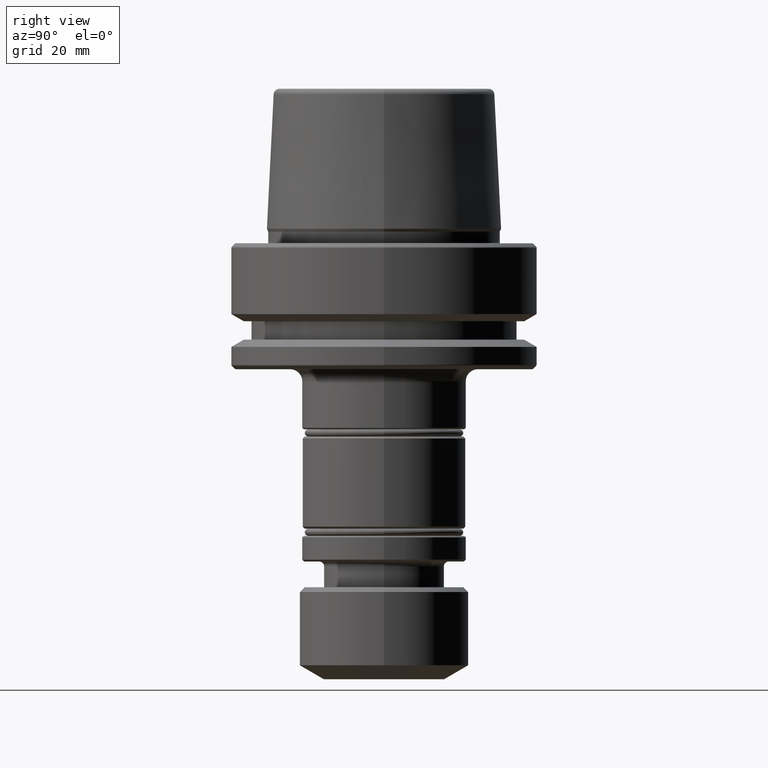
[diagram: clean part render]
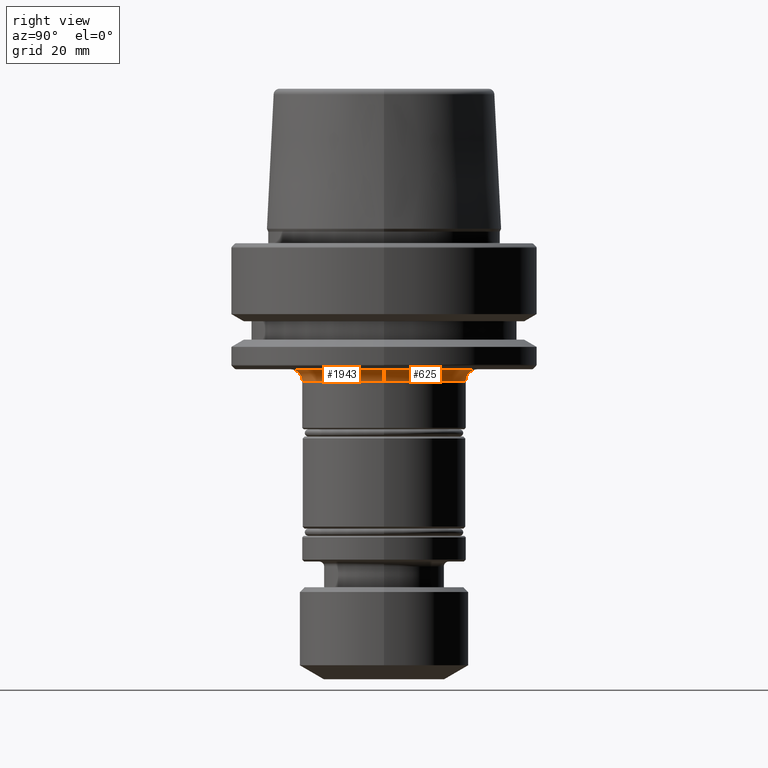
[diagram: same view with one multi-face feature highlighted, each face labeled with its STEP entity id]
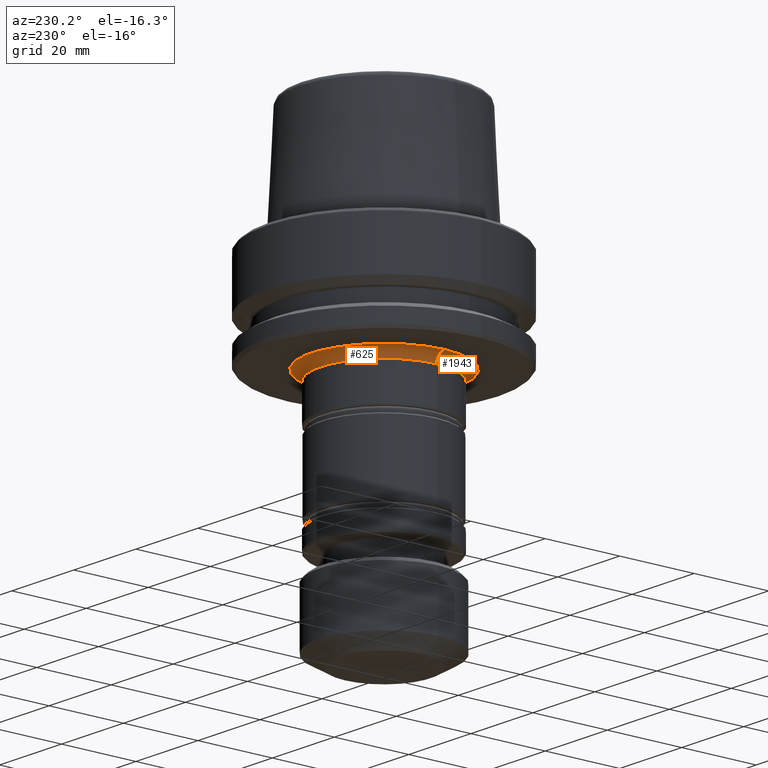
[diagram: same view with one multi-face feature highlighted, each face labeled with its STEP entity id]
A machine part, right view. The highlighted faces form ONE feature: a constant-radius fillet chain: 2 tangent blend faces with common blend radius 2.5 mm. The faces share edges in the B-rep.
A second angle (auxiliary view) of the same feature is appended — it is thin or edge-on in the first view.
Their STEP definitions:
[1] entity #625 (Torus):
#48 = CIRCLE ( 'NONE', #696, 2.499999999999724700 ) ;
#164 = AXIS2_PLACEMENT_3D ( 'NONE', #1621, #326, #1108 ) ;
#205 = CARTESIAN_POINT ( 'NONE',  ( 0.0000000000000000000, 0.0000000000000000000, -26.00000000000000700 ) ) ;
#301 = DIRECTION ( 'NONE',  ( 1.224646799147353200E-016, 1.000000000000000000, 0.0000000000000000000 ) ) ;
#326 = DIRECTION ( 'NONE',  ( -0.0000000000000000000, -0.0000000000000000000, 1.000000000000000000 ) ) ;
#363 = DIRECTION ( 'NONE',  ( -0.0000000000000000000, -0.0000000000000000000, 1.000000000000000000 ) ) ;
#406 = ORIENTED_EDGE ( 'NONE', *, *, #836, .F. ) ;
#494 = EDGE_CURVE ( 'NONE', #1914, #1293, #624, .T. ) ;
#506 = TOROIDAL_SURFACE ( 'NONE', #164, 19.50000000000229500, 2.499999999999724700 ) ;
#511 = CARTESIAN_POINT ( 'NONE',  ( 17.00000000000234500, 0.0000000000000000000, -28.49999999999994300 ) ) ;
#591 = CARTESIAN_POINT ( 'NONE',  ( -17.00000000000234500, 2.081899558550787800E-015, -28.49999999999994300 ) ) ;
#593 = CARTESIAN_POINT ( 'NONE',  ( -19.50000000000229500, 2.388061258337619800E-015, -26.00000000000011400 ) ) ;
#624 = CIRCLE ( 'NONE', #718, 17.00000000000234500 ) ;
#625 = ADVANCED_FACE ( 'NONE', ( #1139 ), #506, .F. ) ;
#696 = AXIS2_PLACEMENT_3D ( 'NONE', #1719, #736, #1872 ) ;
#718 = AXIS2_PLACEMENT_3D ( 'NONE', #1699, #363, #850 ) ;
#720 = CIRCLE ( 'NONE', #755, 19.50000000000229500 ) ;
#732 = ORIENTED_EDGE ( 'NONE', *, *, #494, .T. ) ;
#736 = DIRECTION ( 'NONE',  ( 0.0000000000000000000, -1.000000000000000000, 0.0000000000000000000 ) ) ;
#755 = AXIS2_PLACEMENT_3D ( 'NONE', #205, #1984, #1486 ) ;
#797 = ORIENTED_EDGE ( 'NONE', *, *, #1608, .T. ) ;
#833 = EDGE_CURVE ( 'NONE', #1036, #2090, #720, .T. ) ;
#836 = EDGE_CURVE ( 'NONE', #1036, #1293, #1647, .T. ) ;
#850 = DIRECTION ( 'NONE',  ( 1.000000000000000000, 0.0000000000000000000, 0.0000000000000000000 ) ) ;
#964 = AXIS2_PLACEMENT_3D ( 'NONE', #1901, #301, #1521 ) ;
#1036 = VERTEX_POINT ( 'NONE', #593 ) ;
#1108 = DIRECTION ( 'NONE',  ( 1.000000000000000000, 0.0000000000000000000, 0.0000000000000000000 ) ) ;
#1139 = FACE_OUTER_BOUND ( 'NONE', #1954, .T. ) ;
#1293 = VERTEX_POINT ( 'NONE', #591 ) ;
#1486 = DIRECTION ( 'NONE',  ( 1.000000000000000000, 0.0000000000000000000, 0.0000000000000000000 ) ) ;
#1521 = DIRECTION ( 'NONE',  ( -1.000000000000000000, 1.224646799147353000E-016, 0.0000000000000000000 ) ) ;
#1608 = EDGE_CURVE ( 'NONE', #2090, #1914, #48, .T. ) ;
#1621 = CARTESIAN_POINT ( 'NONE',  ( 0.0000000000000000000, 0.0000000000000000000, -28.49999999999994300 ) ) ;
#1647 = CIRCLE ( 'NONE', #964, 2.499999999999724700 ) ;
#1698 = CARTESIAN_POINT ( 'NONE',  ( 19.50000000000229500, 0.0000000000000000000, -26.00000000000011400 ) ) ;
#1699 = CARTESIAN_POINT ( 'NONE',  ( 0.0000000000000000000, 0.0000000000000000000, -28.49999999999994300 ) ) ;
#1719 = CARTESIAN_POINT ( 'NONE',  ( 19.50000000000229500, 0.0000000000000000000, -28.49999999999994300 ) ) ;
#1833 = ORIENTED_EDGE ( 'NONE', *, *, #833, .T. ) ;
#1872 = DIRECTION ( 'NONE',  ( 0.0000000000000000000, 0.0000000000000000000, -1.000000000000000000 ) ) ;
#1901 = CARTESIAN_POINT ( 'NONE',  ( -19.50000000000229500, 2.388061258337619800E-015, -28.49999999999994300 ) ) ;
#1914 = VERTEX_POINT ( 'NONE', #511 ) ;
#1954 = EDGE_LOOP ( 'NONE', ( #406, #1833, #797, #732 ) ) ;
#1984 = DIRECTION ( 'NONE',  ( 0.0000000000000000000, 0.0000000000000000000, -1.000000000000000000 ) ) ;
#2090 = VERTEX_POINT ( 'NONE', #1698 ) ;
[2] entity #1943 (Torus):
#33 = AXIS2_PLACEMENT_3D ( 'NONE', #688, #1207, #1173 ) ;
#40 = DIRECTION ( 'NONE',  ( -0.0000000000000000000, -0.0000000000000000000, 1.000000000000000000 ) ) ;
#48 = CIRCLE ( 'NONE', #696, 2.499999999999724700 ) ;
#155 = TOROIDAL_SURFACE ( 'NONE', #1302, 19.50000000000229500, 2.499999999999724700 ) ;
#301 = DIRECTION ( 'NONE',  ( 1.224646799147353200E-016, 1.000000000000000000, 0.0000000000000000000 ) ) ;
#362 = AXIS2_PLACEMENT_3D ( 'NONE', #1178, #1424, #1235 ) ;
#466 = CIRCLE ( 'NONE', #33, 17.00000000000234500 ) ;
#485 = FACE_OUTER_BOUND ( 'NONE', #1958, .T. ) ;
#511 = CARTESIAN_POINT ( 'NONE',  ( 17.00000000000234500, 0.0000000000000000000, -28.49999999999994300 ) ) ;
#528 = CARTESIAN_POINT ( 'NONE',  ( 0.0000000000000000000, 0.0000000000000000000, -28.49999999999994300 ) ) ;
#591 = CARTESIAN_POINT ( 'NONE',  ( -17.00000000000234500, 2.081899558550787800E-015, -28.49999999999994300 ) ) ;
#593 = CARTESIAN_POINT ( 'NONE',  ( -19.50000000000229500, 2.388061258337619800E-015, -26.00000000000011400 ) ) ;
#688 = CARTESIAN_POINT ( 'NONE',  ( 0.0000000000000000000, 0.0000000000000000000, -28.49999999999994300 ) ) ;
#696 = AXIS2_PLACEMENT_3D ( 'NONE', #1719, #736, #1872 ) ;
#736 = DIRECTION ( 'NONE',  ( 0.0000000000000000000, -1.000000000000000000, 0.0000000000000000000 ) ) ;
#836 = EDGE_CURVE ( 'NONE', #1036, #1293, #1647, .T. ) ;
#894 = CIRCLE ( 'NONE', #362, 19.50000000000229500 ) ;
#964 = AXIS2_PLACEMENT_3D ( 'NONE', #1901, #301, #1521 ) ;
#984 = ORIENTED_EDGE ( 'NONE', *, *, #1132, .T. ) ;
#1036 = VERTEX_POINT ( 'NONE', #593 ) ;
#1061 = ORIENTED_EDGE ( 'NONE', *, *, #836, .T. ) ;
#1128 = EDGE_CURVE ( 'NONE', #1293, #1914, #466, .T. ) ;
#1132 = EDGE_CURVE ( 'NONE', #2090, #1036, #894, .T. ) ;
#1173 = DIRECTION ( 'NONE',  ( 1.000000000000000000, 0.0000000000000000000, 0.0000000000000000000 ) ) ;
#1178 = CARTESIAN_POINT ( 'NONE',  ( 0.0000000000000000000, 0.0000000000000000000, -26.00000000000000700 ) ) ;
#1207 = DIRECTION ( 'NONE',  ( -0.0000000000000000000, -0.0000000000000000000, 1.000000000000000000 ) ) ;
#1235 = DIRECTION ( 'NONE',  ( 1.000000000000000000, 0.0000000000000000000, 0.0000000000000000000 ) ) ;
#1265 = ORIENTED_EDGE ( 'NONE', *, *, #1608, .F. ) ;
#1293 = VERTEX_POINT ( 'NONE', #591 ) ;
#1302 = AXIS2_PLACEMENT_3D ( 'NONE', #528, #40, #1659 ) ;
#1424 = DIRECTION ( 'NONE',  ( 0.0000000000000000000, 0.0000000000000000000, -1.000000000000000000 ) ) ;
#1521 = DIRECTION ( 'NONE',  ( -1.000000000000000000, 1.224646799147353000E-016, 0.0000000000000000000 ) ) ;
#1546 = ORIENTED_EDGE ( 'NONE', *, *, #1128, .T. ) ;
#1608 = EDGE_CURVE ( 'NONE', #2090, #1914, #48, .T. ) ;
#1647 = CIRCLE ( 'NONE', #964, 2.499999999999724700 ) ;
#1659 = DIRECTION ( 'NONE',  ( 1.000000000000000000, 0.0000000000000000000, 0.0000000000000000000 ) ) ;
#1698 = CARTESIAN_POINT ( 'NONE',  ( 19.50000000000229500, 0.0000000000000000000, -26.00000000000011400 ) ) ;
#1719 = CARTESIAN_POINT ( 'NONE',  ( 19.50000000000229500, 0.0000000000000000000, -28.49999999999994300 ) ) ;
#1872 = DIRECTION ( 'NONE',  ( 0.0000000000000000000, 0.0000000000000000000, -1.000000000000000000 ) ) ;
#1901 = CARTESIAN_POINT ( 'NONE',  ( -19.50000000000229500, 2.388061258337619800E-015, -28.49999999999994300 ) ) ;
#1914 = VERTEX_POINT ( 'NONE', #511 ) ;
#1943 = ADVANCED_FACE ( 'NONE', ( #485 ), #155, .F. ) ;
#1958 = EDGE_LOOP ( 'NONE', ( #984, #1061, #1546, #1265 ) ) ;
#2090 = VERTEX_POINT ( 'NONE', #1698 ) ;